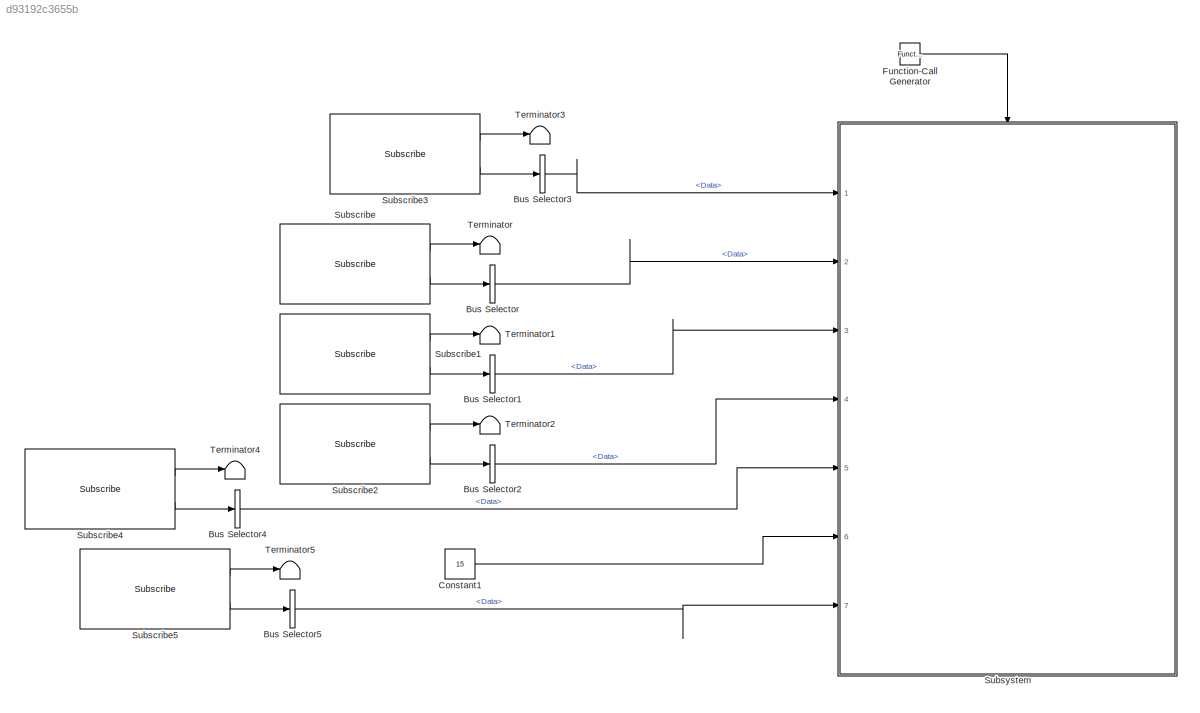
MODEL slx_d93192c3655b
KIND model
CONFIG AbsTol = auto
CONFIG EnableMultiTasking = off
CONFIG FixedStep = 0.001
CONFIG MaxStep = auto
CONFIG MinStep = auto
CONFIG RelTol = 1e-3
CONFIG SampleTimeConstraint = Unconstrained
CONFIG SolverName = FixedStepAuto
CONFIG StartTime = 0.0
CONFIG StopTime = 10.0
BLOCK [BusSelector] Bus Selector
  OutputSignals = Data
  Ports = [1, 1]
BLOCK [BusSelector] Bus Selector1
  OutputSignals = Data
  Ports = [1, 1]
BLOCK [BusSelector] Bus Selector2
  OutputSignals = Data
  Ports = [1, 1]
BLOCK [BusSelector] Bus Selector3
  OutputSignals = Data
  Ports = [1, 1]
BLOCK [BusSelector] Bus Selector4
  OutputSignals = Data
  Ports = [1, 1]
BLOCK [BusSelector] Bus Selector5
  OutputSignals = Data
  Ports = [1, 1]
BLOCK [Constant] Constant1
  Value = 15
BLOCK [Reference] Function-Call Generator  REF=simulink/Ports &
Subsystems/Function-Call
Generator
  Ports = [0, 1]
  SourceBlock = simulink/Ports &\nSubsystems/Function-Call\nGenerator
  SourceProductBaseCode = SL
  SourceType = Function-Call Generator
BLOCK [Reference] Subscribe  REF=robotlib/Subscribe
  Ports = [0, 2]
  SourceBlock = robotlib/Subscribe
  SourceProductBaseCode = RR
  SourceType = ROS Subscribe
BLOCK [Reference] Subscribe1  REF=robotlib/Subscribe
  Ports = [0, 2]
  SourceBlock = robotlib/Subscribe
  SourceProductBaseCode = RR
  SourceType = ROS Subscribe
BLOCK [Reference] Subscribe2  REF=robotlib/Subscribe
  Ports = [0, 2]
  SourceBlock = robotlib/Subscribe
  SourceProductBaseCode = RR
  SourceType = ROS Subscribe
BLOCK [Reference] Subscribe3  REF=robotlib/Subscribe
  Ports = [0, 2]
  SourceBlock = robotlib/Subscribe
  SourceProductBaseCode = RR
  SourceType = ROS Subscribe
BLOCK [Reference] Subscribe4  REF=robotlib/Subscribe
  Ports = [0, 2]
  SourceBlock = robotlib/Subscribe
  SourceProductBaseCode = RR
  SourceType = ROS Subscribe
BLOCK [Reference] Subscribe5  REF=robotlib/Subscribe
  Ports = [0, 2]
  SourceBlock = robotlib/Subscribe
  SourceProductBaseCode = RR
  SourceType = ROS Subscribe
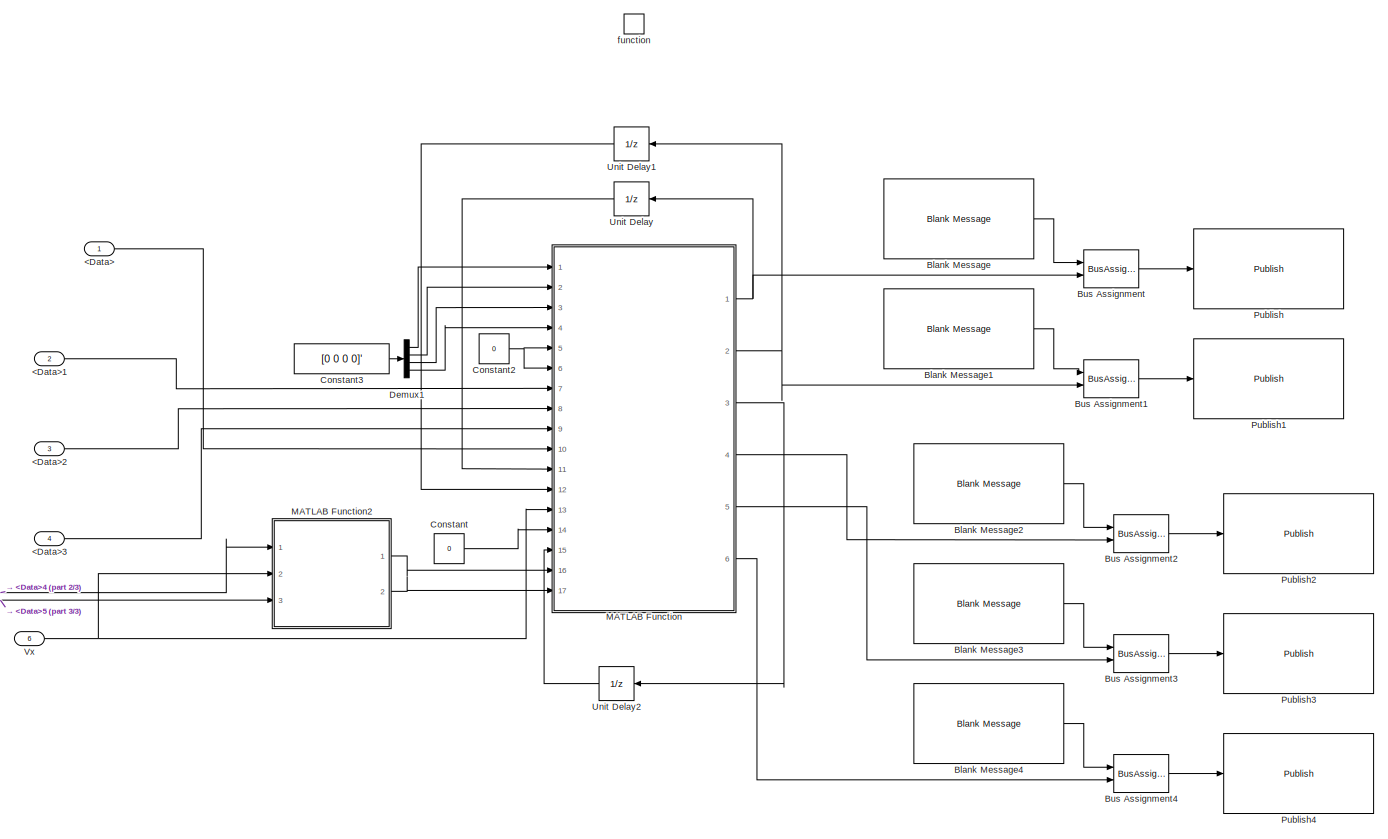
[diagram: Subsystem - part 1/3, most of the canvas]
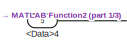
[diagram: Subsystem - part 2/3, bottom left region]
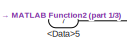
[diagram: Subsystem - part 3/3, bottom left region]
BLOCK [SubSystem] Subsystem
  Ports = [7, 0, 0, 1]
  RequestExecContextInheritance = off
BLOCK [Inport] Subsystem/<Data>
BLOCK [Inport] Subsystem/<Data>1
  Port = 2
BLOCK [Inport] Subsystem/<Data>2
  Port = 3
BLOCK [Inport] Subsystem/<Data>3
  Port = 4
BLOCK [Inport] Subsystem/<Data>4
  Port = 5
BLOCK [Inport] Subsystem/<Data>5
  Port = 7
BLOCK [Reference] Subsystem/Blank Message  REF=robotlib/Blank Message
  Ports = [0, 1]
  SourceBlock = robotlib/Blank Message
  SourceProductBaseCode = RR
  SourceType = ROS Blank Message
BLOCK [Reference] Subsystem/Blank Message1  REF=robotlib/Blank Message
  Ports = [0, 1]
  SourceBlock = robotlib/Blank Message
  SourceProductBaseCode = RR
  SourceType = ROS Blank Message
BLOCK [Reference] Subsystem/Blank Message2  REF=robotlib/Blank Message
  Ports = [0, 1]
  SourceBlock = robotlib/Blank Message
  SourceProductBaseCode = RR
  SourceType = ROS Blank Message
BLOCK [Reference] Subsystem/Blank Message3  REF=robotlib/Blank Message
  Ports = [0, 1]
  SourceBlock = robotlib/Blank Message
  SourceProductBaseCode = RR
  SourceType = ROS Blank Message
BLOCK [Reference] Subsystem/Blank Message4  REF=robotlib/Blank Message
  Ports = [0, 1]
  SourceBlock = robotlib/Blank Message
  SourceProductBaseCode = RR
  SourceType = ROS Blank Message
BLOCK [BusAssignment] Subsystem/Bus Assignment
  AssignedSignals = Data
  Ports = [2, 1]
BLOCK [BusAssignment] Subsystem/Bus Assignment1
  AssignedSignals = Data
  Ports = [2, 1]
BLOCK [BusAssignment] Subsystem/Bus Assignment2
  AssignedSignals = Data
  Ports = [2, 1]
BLOCK [BusAssignment] Subsystem/Bus Assignment3
  AssignedSignals = Data
  Ports = [2, 1]
BLOCK [BusAssignment] Subsystem/Bus Assignment4
  AssignedSignals = Data
  Ports = [2, 1]
BLOCK [Constant] Subsystem/Constant
  Value = 0
BLOCK [Constant] Subsystem/Constant2
  Value = 0
BLOCK [Constant] Subsystem/Constant3
  Value = [0 0 0 0]'
BLOCK [Demux] Subsystem/Demux1
  Ports = [1, 4]
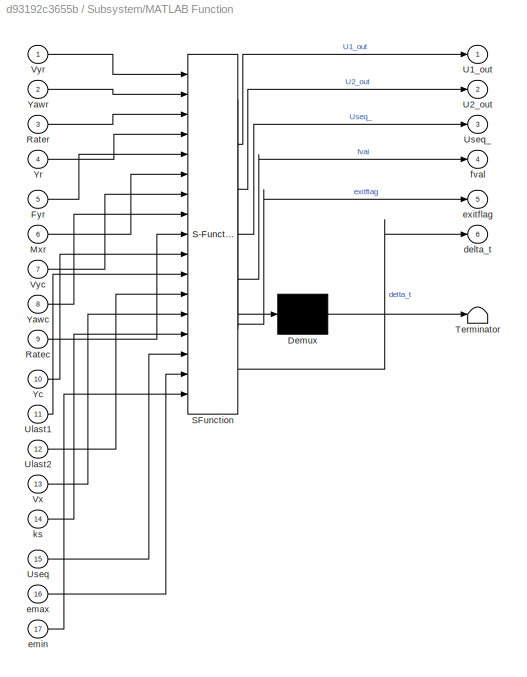
BLOCK [SubSystem] Subsystem/MATLAB Function
  ErrorFcn = Stateflow.Translate.translate
  PermitHierarchicalResolution = ExplicitOnly
  Ports = [17, 6]
  RequestExecContextInheritance = off
  SFBlockType = MATLAB Function
  TreatAsAtomicUnit = on
BLOCK [Demux] Subsystem/MATLAB Function/ Demux 
  Outputs = 1
  Ports = [1, 1]
BLOCK [S-Function] Subsystem/MATLAB Function/ SFunction 
  EnableBusSupport = on
  FunctionName = sf_sfun
  PortCounts = [17 7]
  Ports = [17, 7]
  SFcnIsStateOwnerBlock = off
  SFunctionDeploymentMode = off
  Tag = Stateflow S-Function 1
BLOCK [Terminator] Subsystem/MATLAB Function/ Terminator 
BLOCK [Inport] Subsystem/MATLAB Function/Fyr
  Port = 5
BLOCK [Inport] Subsystem/MATLAB Function/Mxr
  Port = 6
BLOCK [Inport] Subsystem/MATLAB Function/Ratec
  Port = 9
BLOCK [Inport] Subsystem/MATLAB Function/Rater
  Port = 3
BLOCK [Outport] Subsystem/MATLAB Function/U1_out
BLOCK [Outport] Subsystem/MATLAB Function/U2_out
  Port = 2
BLOCK [Inport] Subsystem/MATLAB Function/Ulast1
  Port = 11
BLOCK [Inport] Subsystem/MATLAB Function/Ulast2
  Port = 12
BLOCK [Inport] Subsystem/MATLAB Function/Useq
  Port = 15
BLOCK [Outport] Subsystem/MATLAB Function/Useq_
  Port = 3
BLOCK [Inport] Subsystem/MATLAB Function/Vx
  Port = 13
BLOCK [Inport] Subsystem/MATLAB Function/Vyc
  Port = 7
BLOCK [Inport] Subsystem/MATLAB Function/Vyr
BLOCK [Inport] Subsystem/MATLAB Function/Yawc
  Port = 8
BLOCK [Inport] Subsystem/MATLAB Function/Yawr
  Port = 2
BLOCK [Inport] Subsystem/MATLAB Function/Yc
  Port = 10
BLOCK [Inport] Subsystem/MATLAB Function/Yr
  Port = 4
BLOCK [Outport] Subsystem/MATLAB Function/delta_t
  Port = 6
BLOCK [Inport] Subsystem/MATLAB Function/emax
  Port = 16
BLOCK [Inport] Subsystem/MATLAB Function/emin
  Port = 17
BLOCK [Outport] Subsystem/MATLAB Function/exitflag
  Port = 5
BLOCK [Outport] Subsystem/MATLAB Function/fval
  Port = 4
BLOCK [Inport] Subsystem/MATLAB Function/ks
  Port = 14
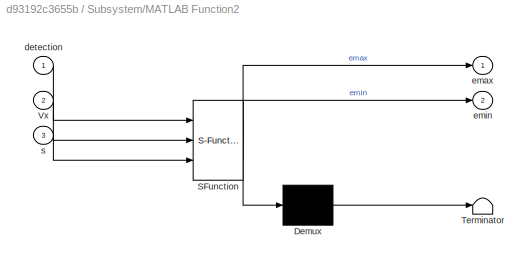
BLOCK [SubSystem] Subsystem/MATLAB Function2
  ErrorFcn = Stateflow.Translate.translate
  PermitHierarchicalResolution = ExplicitOnly
  Ports = [3, 2]
  RequestExecContextInheritance = off
  SFBlockType = MATLAB Function
  TreatAsAtomicUnit = on
BLOCK [Demux] Subsystem/MATLAB Function2/ Demux 
  Outputs = 1
  Ports = [1, 1]
BLOCK [S-Function] Subsystem/MATLAB Function2/ SFunction 
  EnableBusSupport = on
  FunctionName = sf_sfun
  PortCounts = [3 3]
  Ports = [3, 3]
  SFcnIsStateOwnerBlock = off
  SFunctionDeploymentMode = off
  Tag = Stateflow S-Function 2
BLOCK [Terminator] Subsystem/MATLAB Function2/ Terminator 
BLOCK [Inport] Subsystem/MATLAB Function2/Vx
  Port = 2
BLOCK [Inport] Subsystem/MATLAB Function2/detection
BLOCK [Outport] Subsystem/MATLAB Function2/emax
BLOCK [Outport] Subsystem/MATLAB Function2/emin
  Port = 2
BLOCK [Inport] Subsystem/MATLAB Function2/s
  Port = 3
BLOCK [Reference] Subsystem/Publish  REF=robotlib/Publish
  Ports = [1]
  SourceBlock = robotlib/Publish
  SourceProductBaseCode = RR
  SourceType = ROS Publish
BLOCK [Reference] Subsystem/Publish1  REF=robotlib/Publish
  Ports = [1]
  SourceBlock = robotlib/Publish
  SourceProductBaseCode = RR
  SourceType = ROS Publish
BLOCK [Reference] Subsystem/Publish2  REF=robotlib/Publish
  Ports = [1]
  SourceBlock = robotlib/Publish
  SourceProductBaseCode = RR
  SourceType = ROS Publish
BLOCK [Reference] Subsystem/Publish3  REF=robotlib/Publish
  Ports = [1]
  SourceBlock = robotlib/Publish
  SourceProductBaseCode = RR
  SourceType = ROS Publish
BLOCK [Reference] Subsystem/Publish4  REF=robotlib/Publish
  Ports = [1]
  SourceBlock = robotlib/Publish
  SourceProductBaseCode = RR
  SourceType = ROS Publish
BLOCK [UnitDelay] Subsystem/Unit Delay
  HasFrameUpgradeWarning = on
  SampleTime = -1
BLOCK [UnitDelay] Subsystem/Unit Delay1
  HasFrameUpgradeWarning = on
  SampleTime = -1
BLOCK [UnitDelay] Subsystem/Unit Delay2
  HasFrameUpgradeWarning = on
  InitialCondition = zeros(61,2)
  SampleTime = -1
BLOCK [Inport] Subsystem/Vx
  Port = 6
BLOCK [TriggerPort] Subsystem/function
  Ports = []
  StatesWhenEnabling = held
  TriggerType = function-call
  VariantControl = (inherit)
BLOCK [Terminator] Terminator
BLOCK [Terminator] Terminator1
BLOCK [Terminator] Terminator2
BLOCK [Terminator] Terminator3
BLOCK [Terminator] Terminator4
BLOCK [Terminator] Terminator5
LINE Bus Selector1:1 -> Subsystem:3
LINE Bus Selector2:1 -> Subsystem:4
LINE Bus Selector3:1 -> Subsystem:1
LINE Bus Selector4:1 -> Subsystem:5
LINE Bus Selector5:1 -> Subsystem:7
LINE Bus Selector:1 -> Subsystem:2
LINE Constant1:1 -> Subsystem:6
LINE Function-Call Generator:1 -> Subsystem:trigger
LINE Subscribe1:1 -> Terminator1:1
LINE Subscribe1:2 -> Bus Selector1:1
LINE Subscribe2:1 -> Terminator2:1
LINE Subscribe2:2 -> Bus Selector2:1
LINE Subscribe3:1 -> Terminator3:1
LINE Subscribe3:2 -> Bus Selector3:1
LINE Subscribe4:1 -> Terminator4:1
LINE Subscribe4:2 -> Bus Selector4:1
LINE Subscribe5:1 -> Terminator5:1
LINE Subscribe5:2 -> Bus Selector5:1
LINE Subscribe:1 -> Terminator:1
LINE Subscribe:2 -> Bus Selector:1
LINE Subsystem/<Data>1:1 -> Subsystem/MATLAB Function:7
LINE Subsystem/<Data>2:1 -> Subsystem/MATLAB Function:8
LINE Subsystem/<Data>3:1 -> Subsystem/MATLAB Function:9
LINE Subsystem/<Data>4:1 -> Subsystem/MATLAB Function2:1
LINE Subsystem/<Data>5:1 -> Subsystem/MATLAB Function2:3
LINE Subsystem/<Data>:1 -> Subsystem/MATLAB Function:10
LINE Subsystem/Blank Message1:1 -> Subsystem/Bus Assignment1:1
LINE Subsystem/Blank Message2:1 -> Subsystem/Bus Assignment2:1
LINE Subsystem/Blank Message3:1 -> Subsystem/Bus Assignment3:1
LINE Subsystem/Blank Message4:1 -> Subsystem/Bus Assignment4:1
LINE Subsystem/Blank Message:1 -> Subsystem/Bus Assignment:1
LINE Subsystem/Bus Assignment1:1 -> Subsystem/Publish1:1
LINE Subsystem/Bus Assignment2:1 -> Subsystem/Publish2:1
LINE Subsystem/Bus Assignment3:1 -> Subsystem/Publish3:1
LINE Subsystem/Bus Assignment4:1 -> Subsystem/Publish4:1
LINE Subsystem/Bus Assignment:1 -> Subsystem/Publish:1
NET Subsystem/Constant2:1 -> Subsystem/MATLAB Function:5, Subsystem/MATLAB Function:6
LINE Subsystem/Constant3:1 -> Subsystem/Demux1:1
LINE Subsystem/Constant:1 -> Subsystem/MATLAB Function:14
LINE Subsystem/Demux1:1 -> Subsystem/MATLAB Function:1
LINE Subsystem/Demux1:2 -> Subsystem/MATLAB Function:2
LINE Subsystem/Demux1:3 -> Subsystem/MATLAB Function:3
LINE Subsystem/Demux1:4 -> Subsystem/MATLAB Function:4
LINE Subsystem/MATLAB Function2:1 -> Subsystem/MATLAB Function:16
LINE Subsystem/MATLAB Function2:2 -> Subsystem/MATLAB Function:17
NET Subsystem/MATLAB Function:1 -> Subsystem/Bus Assignment:2, Subsystem/Unit Delay:1
NET Subsystem/MATLAB Function:2 -> Subsystem/Bus Assignment1:2, Subsystem/Unit Delay1:1
LINE Subsystem/MATLAB Function:3 -> Subsystem/Unit Delay2:1
LINE Subsystem/MATLAB Function:4 -> Subsystem/Bus Assignment2:2
LINE Subsystem/MATLAB Function:5 -> Subsystem/Bus Assignment3:2
LINE Subsystem/MATLAB Function:6 -> Subsystem/Bus Assignment4:2
LINE Subsystem/Unit Delay1:1 -> Subsystem/MATLAB Function:12
LINE Subsystem/Unit Delay2:1 -> Subsystem/MATLAB Function:15
LINE Subsystem/Unit Delay:1 -> Subsystem/MATLAB Function:11
NET Subsystem/Vx:1 -> Subsystem/MATLAB Function2:2, Subsystem/MATLAB Function:13
note: NET lines group one-source signal fan-out (src -> all destinations, sorted); 1:1 wires keep LINE
CHART Subsystem/MATLAB Function states=1 transitions=1
  STATE_LABEL 'eML_blk_kernel()'
  STATE_LABEL "SCRIPT:\nfunction [U1_out,U2_out,Useq_,fval,exitflag,delta_t] = fcn(Vyr,Yawr,Rater,Yr, Fyr,Mxr,Vyc,Yawc,Ratec,Yc,Ulast1,Ulast2,Vx,ks,Useq,emax,emin)\n%Vyr lateral velocity, Yawr yaw angle, Rater yaw rate, Yr lateral position\n%Fyr lateral force in front tyre,Mxr moment generated by longitudinal force\n%'r'means reference ||  'c'means current\n    lr=1.67;\n    threshold=0.1022;\n    miu=0.7;\n    rmax=9.8...<+3608ch>"
CHART Subsystem/MATLAB Function2 states=1 transitions=1
  STATE_LABEL 'eML_blk_kernel()'
  STATE_LABEL 'SCRIPT:\nfunction [emax,emin] = fcn(detection,Vx,s)\nTs=0.05;\nPredictionHorizon=60;\nk = round(s/Vx/Ts);\nif k>PredictionHorizon\n    k =PredictionHorizon;\nelseif k<20\n    k=20;\nend\n\nif detection == 1\n    emin = -10*ones(PredictionHorizon,1);\n    emax=   10*ones(PredictionHorizon,1);\n    k1=k-round(3/Vx/Ts);\n    k2=k+round(3/Vx/Ts);\n    if k1<1\n        k1=1;\n    end\n    if k2>PredictionHorizon\n        ...<+155ch>'
CHART  states=0 transitions=0
CHART  states=0 transitions=0
